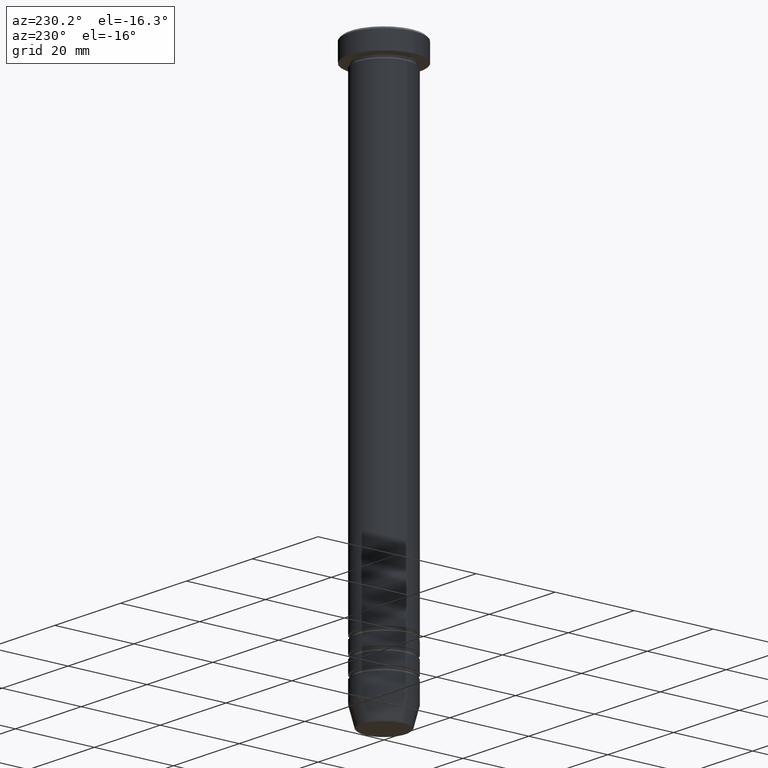
[diagram: clean part render]
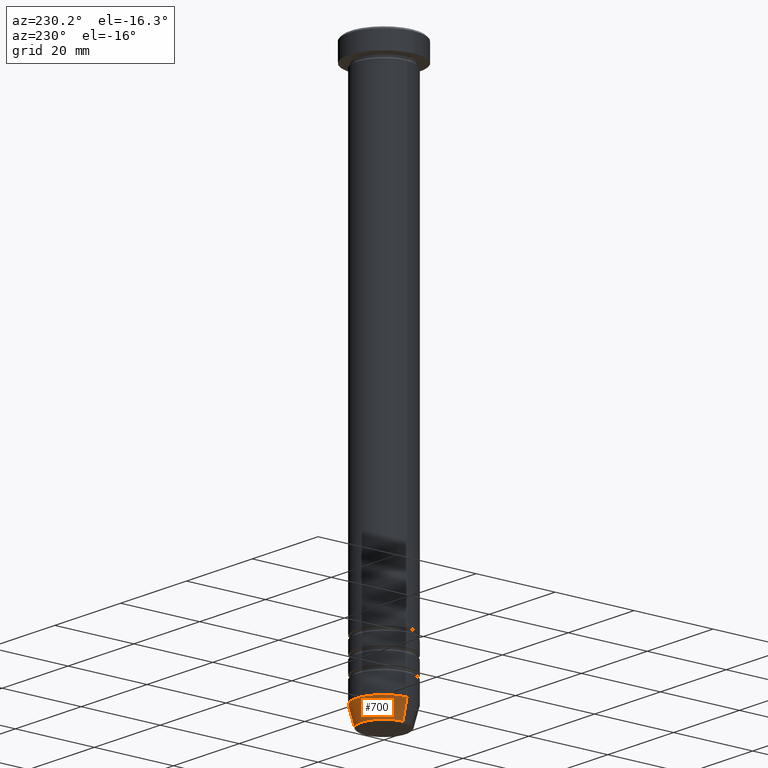
[diagram: same view with one face highlighted and labeled with its STEP entity id]
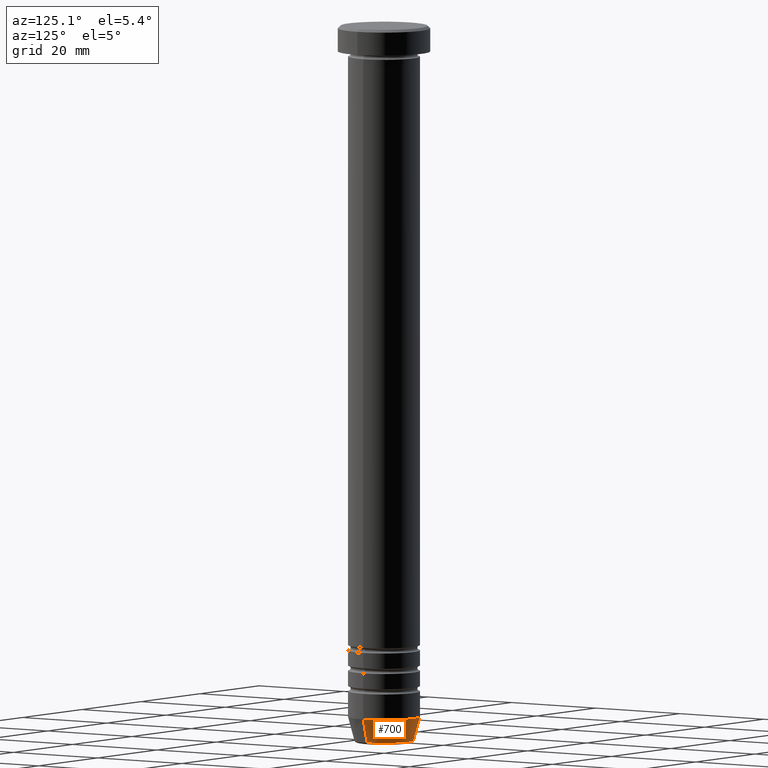
[diagram: same view with one face highlighted and labeled with its STEP entity id]
A machine part, auxiliary view. The second image highlights one B-rep face of the part: STEP entity #700.
A second angle (auxiliary view) of the same face is appended — the face is thin or edge-on in the first view.
In plain terms, the highlighted conical surface has half-angle 15 deg.
Its self-contained STEP definition (entity closure, byte-faithful):
#65 = DIRECTION ( 'NONE',  ( -1.000000000000000000, 0.000000000000000000, 0.000000000000000000 ) ) ;
#92 = CARTESIAN_POINT ( 'NONE',  ( 7.000000000000000000, 0.000000000000000000, -134.9999999999999716 ) ) ;
#97 = AXIS2_PLACEMENT_3D ( 'NONE', #800, #722, #65 ) ;
#134 = DIRECTION ( 'NONE',  ( -0.000000000000000000, -0.000000000000000000, 1.000000000000000000 ) ) ;
#149 = CARTESIAN_POINT ( 'NONE',  ( 0.000000000000000000, 0.000000000000000000, -140.0000000000000000 ) ) ;
#151 = CARTESIAN_POINT ( 'NONE',  ( -5.660254037844373087, 6.931811989806993503E-16, -140.0000000000000000 ) ) ;
#197 = ORIENTED_EDGE ( 'NONE', *, *, #216, .T. ) ;
#207 = EDGE_LOOP ( 'NONE', ( #274, #197, #841, #1001 ) ) ;
#208 = CARTESIAN_POINT ( 'NONE',  ( 5.759553456999428001, 0.000000000000000000, -139.6294095225512706 ) ) ;
#216 = EDGE_CURVE ( 'NONE', #947, #944, #508, .T. ) ;
#270 = AXIS2_PLACEMENT_3D ( 'NONE', #550, #134, #392 ) ;
#274 = ORIENTED_EDGE ( 'NONE', *, *, #759, .T. ) ;
#286 = VECTOR ( 'NONE', #314, 1000.000000000000114 ) ;
#314 = DIRECTION ( 'NONE',  ( 0.2588190451025215166, 0.000000000000000000, 0.9659258262890679791 ) ) ;
#392 = DIRECTION ( 'NONE',  ( 1.000000000000000000, 0.000000000000000000, 0.000000000000000000 ) ) ;
#394 = CIRCLE ( 'NONE', #97, 5.759553456999428001 ) ;
#398 = CARTESIAN_POINT ( 'NONE',  ( 5.660254037844373087, 0.000000000000000000, -140.0000000000000000 ) ) ;
#406 = DIRECTION ( 'NONE',  ( -0.2588190451025215166, 3.169619151431774802E-17, 0.9659258262890679791 ) ) ;
#414 = CARTESIAN_POINT ( 'NONE',  ( -5.759553456999428001, 7.812973149831946843E-16, -139.6294095225512706 ) ) ;
#490 = DIRECTION ( 'NONE',  ( 1.000000000000000000, 0.000000000000000000, 0.000000000000000000 ) ) ;
#508 = LINE ( 'NONE', #151, #598 ) ;
#550 = CARTESIAN_POINT ( 'NONE',  ( 0.000000000000000000, 0.000000000000000000, -134.9999999999999716 ) ) ;
#555 = EDGE_CURVE ( 'NONE', #807, #944, #921, .T. ) ;
#568 = DIRECTION ( 'NONE',  ( -0.000000000000000000, -0.000000000000000000, 1.000000000000000000 ) ) ;
#574 = FACE_OUTER_BOUND ( 'NONE', #207, .T. ) ;
#598 = VECTOR ( 'NONE', #406, 1000.000000000000114 ) ;
#620 = VERTEX_POINT ( 'NONE', #208 ) ;
#700 = ADVANCED_FACE ( 'NONE', ( #574 ), #711, .T. ) ;
#711 = CONICAL_SURFACE ( 'NONE', #879, 5.660254037844373087, 0.2617993877991502960 ) ;
#722 = DIRECTION ( 'NONE',  ( -0.000000000000000000, -0.000000000000000000, 1.000000000000000000 ) ) ;
#744 = EDGE_CURVE ( 'NONE', #620, #807, #803, .T. ) ;
#759 = EDGE_CURVE ( 'NONE', #620, #947, #394, .T. ) ;
#800 = CARTESIAN_POINT ( 'NONE',  ( 0.000000000000000000, 0.000000000000000000, -139.6294095225512706 ) ) ;
#803 = LINE ( 'NONE', #398, #286 ) ;
#807 = VERTEX_POINT ( 'NONE', #92 ) ;
#841 = ORIENTED_EDGE ( 'NONE', *, *, #555, .F. ) ;
#879 = AXIS2_PLACEMENT_3D ( 'NONE', #149, #568, #490 ) ;
#921 = CIRCLE ( 'NONE', #270, 7.000000000000000000 ) ;
#944 = VERTEX_POINT ( 'NONE', #979 ) ;
#947 = VERTEX_POINT ( 'NONE', #414 ) ;
#979 = CARTESIAN_POINT ( 'NONE',  ( -7.000000000000000000, 8.572527594031473190E-16, -134.9999999999999716 ) ) ;
#1001 = ORIENTED_EDGE ( 'NONE', *, *, #744, .F. ) ;